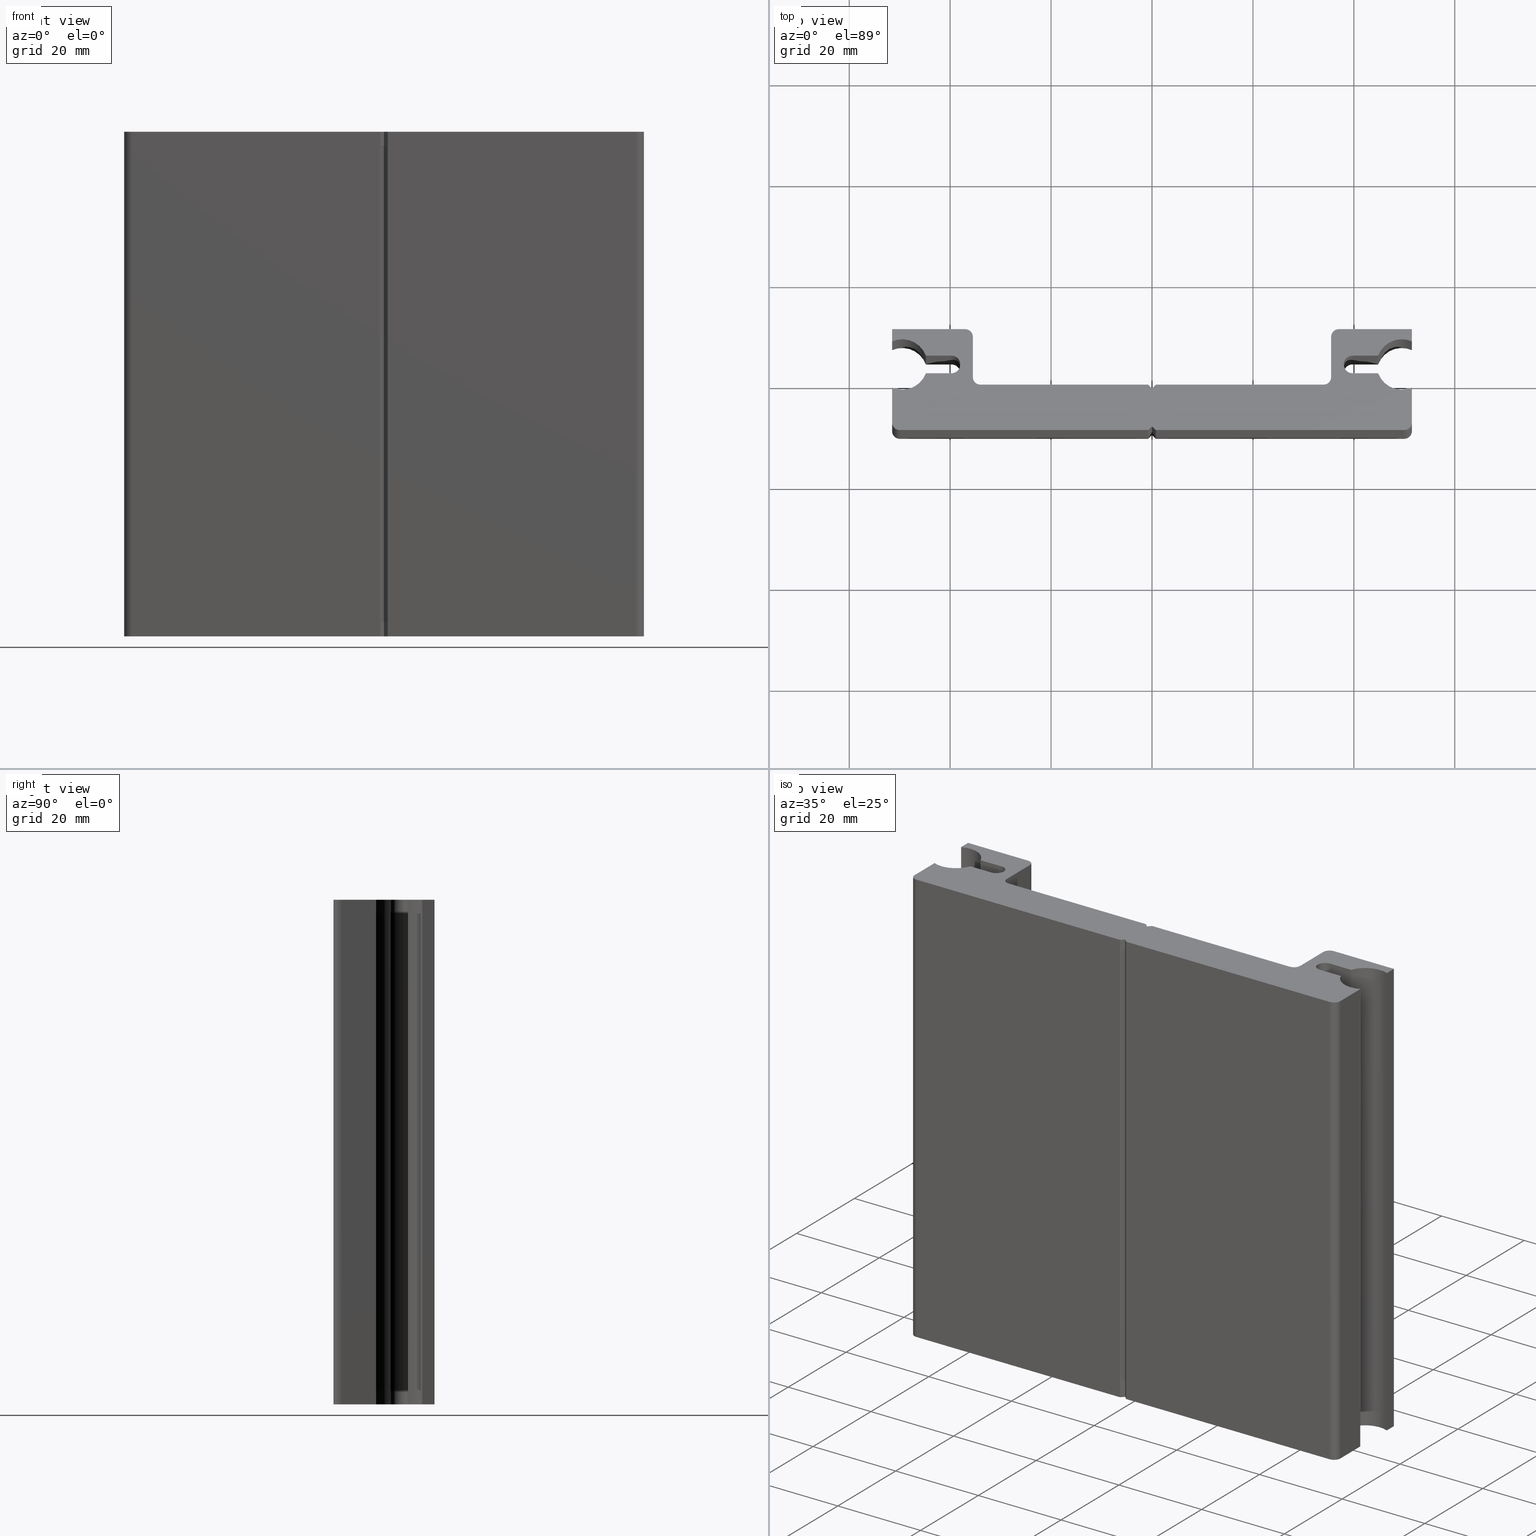
[diagram: canonical four-view strip — front | top / right | iso, engineering-drawing reading convention]
A machine part, canonical four-view strip (front | top / right | iso — engineering-drawing reading convention). The complete STEP part file that produces these views, byte-faithful:
ISO-10303-21;
HEADER;
/* Generated by software containing ST-Developer
 * from STEP Tools, Inc. (www.steptools.com) 
 */

FILE_DESCRIPTION(
/* description */ ('PROFILO GUIDA LINEARE GDX10'),
/* implementation_level */ '2;1');

FILE_NAME(
/* name */ 'C:\\Users\\tecnico7\\Desktop\\F3DTM0000606.stp',
/* time_stamp */ '2022-07-20T15:50:26+02:00',
/* author */ ('tecnico7'),
/* organization */ (''),
/* preprocessor_version */ 'ST-DEVELOPER v18.1',
/* originating_system */ 'Autodesk Inventor 2022',
/* authorisation */ '');

FILE_SCHEMA (('AUTOMOTIVE_DESIGN { 1 0 10303 214 3 1 1 }'));
ENDSEC;

DATA;
#10=MECHANICAL_DESIGN_GEOMETRIC_PRESENTATION_REPRESENTATION('',(#17),#1160);
#11=ITEM_DEFINED_TRANSFORMATION($,$,#704,#763);
#12=(
REPRESENTATION_RELATIONSHIP($,$,#1171,#1170)
REPRESENTATION_RELATIONSHIP_WITH_TRANSFORMATION(#11)
SHAPE_REPRESENTATION_RELATIONSHIP()
);
#13=CONTEXT_DEPENDENT_SHAPE_REPRESENTATION(#12,#1169);
#14=NEXT_ASSEMBLY_USAGE_OCCURRENCE('3DSD000934:1','3DSD000934:1',
'3DSD000934:1',#1173,#1174,'3DSD000934:1');
#15=SHAPE_REPRESENTATION_RELATIONSHIP('SRR','None',#1171,#16);
#16=ADVANCED_BREP_SHAPE_REPRESENTATION('',(#18),#1159);
#17=STYLED_ITEM('',(#1185),#18);
#18=MANIFOLD_SOLID_BREP('Solido1',#675);
#19=CIRCLE('',#708,1.75);
#20=CIRCLE('',#709,1.75);
#21=CIRCLE('',#713,1.75);
#22=CIRCLE('',#714,1.75);
#23=CIRCLE('',#716,5.);
#24=CIRCLE('',#717,5.);
#25=CIRCLE('',#719,5.);
#26=CIRCLE('',#720,5.);
#27=CIRCLE('',#722,5.);
#28=CIRCLE('',#723,5.);
#29=CIRCLE('',#725,5.);
#30=CIRCLE('',#726,5.);
#31=CIRCLE('',#728,1.5);
#32=CIRCLE('',#729,1.5);
#33=CIRCLE('',#730,1.5);
#34=CIRCLE('',#731,1.5);
#35=CIRCLE('',#732,1.5);
#36=CIRCLE('',#733,1.5);
#37=CIRCLE('',#735,1.5);
#38=CIRCLE('',#738,1.5);
#39=CIRCLE('',#739,1.5);
#40=CIRCLE('',#740,1.5);
#41=CIRCLE('',#741,1.5);
#42=CIRCLE('',#742,1.5);
#43=CYLINDRICAL_SURFACE('',#707,1.75);
#44=CYLINDRICAL_SURFACE('',#712,1.75);
#45=CYLINDRICAL_SURFACE('',#715,5.);
#46=CYLINDRICAL_SURFACE('',#718,5.);
#47=CYLINDRICAL_SURFACE('',#721,5.);
#48=CYLINDRICAL_SURFACE('',#724,5.);
#49=CYLINDRICAL_SURFACE('',#734,1.5);
#50=CYLINDRICAL_SURFACE('',#743,1.5);
#51=CYLINDRICAL_SURFACE('',#745,1.5);
#52=CYLINDRICAL_SURFACE('',#747,1.5);
#53=CYLINDRICAL_SURFACE('',#749,1.5);
#54=CYLINDRICAL_SURFACE('',#750,1.5);
#55=FACE_OUTER_BOUND('',#89,.T.);
#56=FACE_OUTER_BOUND('',#90,.T.);
#57=FACE_OUTER_BOUND('',#91,.T.);
#58=FACE_OUTER_BOUND('',#92,.T.);
#59=FACE_OUTER_BOUND('',#93,.T.);
#60=FACE_OUTER_BOUND('',#94,.T.);
#61=FACE_OUTER_BOUND('',#95,.T.);
#62=FACE_OUTER_BOUND('',#96,.T.);
#63=FACE_OUTER_BOUND('',#97,.T.);
#64=FACE_OUTER_BOUND('',#98,.T.);
#65=FACE_OUTER_BOUND('',#99,.T.);
#66=FACE_OUTER_BOUND('',#100,.T.);
#67=FACE_OUTER_BOUND('',#101,.T.);
#68=FACE_OUTER_BOUND('',#102,.T.);
#69=FACE_OUTER_BOUND('',#103,.T.);
#70=FACE_OUTER_BOUND('',#104,.T.);
#71=FACE_OUTER_BOUND('',#105,.T.);
#72=FACE_OUTER_BOUND('',#106,.T.);
#73=FACE_OUTER_BOUND('',#107,.T.);
#74=FACE_OUTER_BOUND('',#108,.T.);
#75=FACE_OUTER_BOUND('',#109,.T.);
#76=FACE_OUTER_BOUND('',#110,.T.);
#77=FACE_OUTER_BOUND('',#111,.T.);
#78=FACE_OUTER_BOUND('',#112,.T.);
#79=FACE_OUTER_BOUND('',#113,.T.);
#80=FACE_OUTER_BOUND('',#114,.T.);
#81=FACE_OUTER_BOUND('',#115,.T.);
#82=FACE_OUTER_BOUND('',#116,.T.);
#83=FACE_OUTER_BOUND('',#117,.T.);
#84=FACE_OUTER_BOUND('',#118,.T.);
#85=FACE_OUTER_BOUND('',#119,.T.);
#86=FACE_OUTER_BOUND('',#120,.T.);
#87=FACE_OUTER_BOUND('',#121,.T.);
#88=FACE_OUTER_BOUND('',#122,.T.);
#89=EDGE_LOOP('',(#427,#428,#429,#430));
#90=EDGE_LOOP('',(#431,#432,#433,#434));
#91=EDGE_LOOP('',(#435,#436,#437,#438));
#92=EDGE_LOOP('',(#439,#440,#441,#442));
#93=EDGE_LOOP('',(#443,#444,#445,#446));
#94=EDGE_LOOP('',(#447,#448,#449,#450));
#95=EDGE_LOOP('',(#451,#452,#453,#454));
#96=EDGE_LOOP('',(#455,#456,#457,#458));
#97=EDGE_LOOP('',(#459,#460,#461,#462));
#98=EDGE_LOOP('',(#463,#464,#465,#466));
#99=EDGE_LOOP('',(#467,#468,#469,#470,#471,#472,#473,#474,#475,#476,#477,
#478,#479,#480,#481,#482,#483,#484,#485,#486,#487,#488,#489,#490,#491,#492,
#493,#494,#495,#496,#497,#498));
#100=EDGE_LOOP('',(#499,#500,#501,#502));
#101=EDGE_LOOP('',(#503,#504,#505,#506));
#102=EDGE_LOOP('',(#507,#508,#509,#510,#511,#512,#513,#514,#515,#516,#517,
#518,#519,#520,#521,#522,#523,#524,#525,#526,#527,#528,#529,#530,#531,#532,
#533,#534,#535,#536,#537,#538));
#103=EDGE_LOOP('',(#539,#540,#541,#542));
#104=EDGE_LOOP('',(#543,#544,#545,#546));
#105=EDGE_LOOP('',(#547,#548,#549,#550));
#106=EDGE_LOOP('',(#551,#552,#553,#554));
#107=EDGE_LOOP('',(#555,#556,#557,#558));
#108=EDGE_LOOP('',(#559,#560,#561,#562));
#109=EDGE_LOOP('',(#563,#564,#565,#566));
#110=EDGE_LOOP('',(#567,#568,#569,#570));
#111=EDGE_LOOP('',(#571,#572,#573,#574));
#112=EDGE_LOOP('',(#575,#576,#577,#578));
#113=EDGE_LOOP('',(#579,#580,#581,#582));
#114=EDGE_LOOP('',(#583,#584,#585,#586));
#115=EDGE_LOOP('',(#587,#588,#589,#590));
#116=EDGE_LOOP('',(#591,#592,#593,#594));
#117=EDGE_LOOP('',(#595,#596,#597,#598));
#118=EDGE_LOOP('',(#599,#600,#601,#602));
#119=EDGE_LOOP('',(#603,#604,#605,#606));
#120=EDGE_LOOP('',(#607,#608,#609,#610));
#121=EDGE_LOOP('',(#611,#612,#613,#614));
#122=EDGE_LOOP('',(#615,#616,#617,#618));
#123=LINE('',#963,#195);
#124=LINE('',#965,#196);
#125=LINE('',#967,#197);
#126=LINE('',#968,#198);
#127=LINE('',#972,#199);
#128=LINE('',#974,#200);
#129=LINE('',#976,#201);
#130=LINE('',#977,#202);
#131=LINE('',#984,#203);
#132=LINE('',#986,#204);
#133=LINE('',#988,#205);
#134=LINE('',#989,#206);
#135=LINE('',#993,#207);
#136=LINE('',#995,#208);
#137=LINE('',#997,#209);
#138=LINE('',#998,#210);
#139=LINE('',#1006,#211);
#140=LINE('',#1012,#212);
#141=LINE('',#1018,#213);
#142=LINE('',#1024,#214);
#143=LINE('',#1028,#215);
#144=LINE('',#1030,#216);
#145=LINE('',#1034,#217);
#146=LINE('',#1038,#218);
#147=LINE('',#1040,#219);
#148=LINE('',#1042,#220);
#149=LINE('',#1044,#221);
#150=LINE('',#1048,#222);
#151=LINE('',#1052,#223);
#152=LINE('',#1053,#224);
#153=LINE('',#1055,#225);
#154=LINE('',#1059,#226);
#155=LINE('',#1061,#227);
#156=LINE('',#1063,#228);
#157=LINE('',#1065,#229);
#158=LINE('',#1068,#230);
#159=LINE('',#1071,#231);
#160=LINE('',#1074,#232);
#161=LINE('',#1077,#233);
#162=LINE('',#1078,#234);
#163=LINE('',#1081,#235);
#164=LINE('',#1085,#236);
#165=LINE('',#1087,#237);
#166=LINE('',#1089,#238);
#167=LINE('',#1091,#239);
#168=LINE('',#1094,#240);
#169=LINE('',#1096,#241);
#170=LINE('',#1098,#242);
#171=LINE('',#1102,#243);
#172=LINE('',#1106,#244);
#173=LINE('',#1108,#245);
#174=LINE('',#1110,#246);
#175=LINE('',#1112,#247);
#176=LINE('',#1115,#248);
#177=LINE('',#1116,#249);
#178=LINE('',#1118,#250);
#179=LINE('',#1119,#251);
#180=LINE('',#1121,#252);
#181=LINE('',#1123,#253);
#182=LINE('',#1124,#254);
#183=LINE('',#1127,#255);
#184=LINE('',#1128,#256);
#185=LINE('',#1130,#257);
#186=LINE('',#1132,#258);
#187=LINE('',#1134,#259);
#188=LINE('',#1136,#260);
#189=LINE('',#1138,#261);
#190=LINE('',#1140,#262);
#191=LINE('',#1142,#263);
#192=LINE('',#1143,#264);
#193=LINE('',#1149,#265);
#194=LINE('',#1152,#266);
#195=VECTOR('',#770,10.);
#196=VECTOR('',#771,10.);
#197=VECTOR('',#772,10.);
#198=VECTOR('',#773,10.);
#199=VECTOR('',#776,10.);
#200=VECTOR('',#777,10.);
#201=VECTOR('',#778,10.);
#202=VECTOR('',#779,10.);
#203=VECTOR('',#788,10.);
#204=VECTOR('',#789,10.);
#205=VECTOR('',#790,10.);
#206=VECTOR('',#791,10.);
#207=VECTOR('',#794,10.);
#208=VECTOR('',#795,10.);
#209=VECTOR('',#796,10.);
#210=VECTOR('',#797,10.);
#211=VECTOR('',#808,10.);
#212=VECTOR('',#815,10.);
#213=VECTOR('',#822,10.);
#214=VECTOR('',#829,10.);
#215=VECTOR('',#834,10.);
#216=VECTOR('',#835,10.);
#217=VECTOR('',#838,10.);
#218=VECTOR('',#841,10.);
#219=VECTOR('',#842,10.);
#220=VECTOR('',#843,10.);
#221=VECTOR('',#844,10.);
#222=VECTOR('',#847,10.);
#223=VECTOR('',#850,10.);
#224=VECTOR('',#851,10.);
#225=VECTOR('',#852,10.);
#226=VECTOR('',#855,10.);
#227=VECTOR('',#856,10.);
#228=VECTOR('',#857,10.);
#229=VECTOR('',#858,10.);
#230=VECTOR('',#861,10.);
#231=VECTOR('',#864,10.);
#232=VECTOR('',#867,10.);
#233=VECTOR('',#870,10.);
#234=VECTOR('',#871,10.);
#235=VECTOR('',#874,10.);
#236=VECTOR('',#877,10.);
#237=VECTOR('',#878,10.);
#238=VECTOR('',#879,10.);
#239=VECTOR('',#880,10.);
#240=VECTOR('',#883,10.);
#241=VECTOR('',#884,10.);
#242=VECTOR('',#885,10.);
#243=VECTOR('',#888,10.);
#244=VECTOR('',#891,10.);
#245=VECTOR('',#892,10.);
#246=VECTOR('',#893,10.);
#247=VECTOR('',#894,10.);
#248=VECTOR('',#897,10.);
#249=VECTOR('',#898,10.);
#250=VECTOR('',#901,10.);
#251=VECTOR('',#902,10.);
#252=VECTOR('',#905,10.);
#253=VECTOR('',#908,10.);
#254=VECTOR('',#909,10.);
#255=VECTOR('',#914,10.);
#256=VECTOR('',#915,10.);
#257=VECTOR('',#918,10.);
#258=VECTOR('',#921,10.);
#259=VECTOR('',#924,10.);
#260=VECTOR('',#927,10.);
#261=VECTOR('',#930,10.);
#262=VECTOR('',#933,10.);
#263=VECTOR('',#936,10.);
#264=VECTOR('',#937,10.);
#265=VECTOR('',#948,10.);
#266=VECTOR('',#953,10.);
#267=VERTEX_POINT('',#961);
#268=VERTEX_POINT('',#962);
#269=VERTEX_POINT('',#964);
#270=VERTEX_POINT('',#966);
#271=VERTEX_POINT('',#970);
#272=VERTEX_POINT('',#971);
#273=VERTEX_POINT('',#973);
#274=VERTEX_POINT('',#975);
#275=VERTEX_POINT('',#982);
#276=VERTEX_POINT('',#983);
#277=VERTEX_POINT('',#985);
#278=VERTEX_POINT('',#987);
#279=VERTEX_POINT('',#991);
#280=VERTEX_POINT('',#992);
#281=VERTEX_POINT('',#994);
#282=VERTEX_POINT('',#996);
#283=VERTEX_POINT('',#1003);
#284=VERTEX_POINT('',#1005);
#285=VERTEX_POINT('',#1009);
#286=VERTEX_POINT('',#1011);
#287=VERTEX_POINT('',#1015);
#288=VERTEX_POINT('',#1017);
#289=VERTEX_POINT('',#1021);
#290=VERTEX_POINT('',#1023);
#291=VERTEX_POINT('',#1027);
#292=VERTEX_POINT('',#1029);
#293=VERTEX_POINT('',#1031);
#294=VERTEX_POINT('',#1033);
#295=VERTEX_POINT('',#1035);
#296=VERTEX_POINT('',#1037);
#297=VERTEX_POINT('',#1039);
#298=VERTEX_POINT('',#1041);
#299=VERTEX_POINT('',#1043);
#300=VERTEX_POINT('',#1045);
#301=VERTEX_POINT('',#1047);
#302=VERTEX_POINT('',#1049);
#303=VERTEX_POINT('',#1051);
#304=VERTEX_POINT('',#1054);
#305=VERTEX_POINT('',#1056);
#306=VERTEX_POINT('',#1058);
#307=VERTEX_POINT('',#1060);
#308=VERTEX_POINT('',#1062);
#309=VERTEX_POINT('',#1064);
#310=VERTEX_POINT('',#1066);
#311=VERTEX_POINT('',#1070);
#312=VERTEX_POINT('',#1072);
#313=VERTEX_POINT('',#1076);
#314=VERTEX_POINT('',#1080);
#315=VERTEX_POINT('',#1082);
#316=VERTEX_POINT('',#1084);
#317=VERTEX_POINT('',#1086);
#318=VERTEX_POINT('',#1088);
#319=VERTEX_POINT('',#1090);
#320=VERTEX_POINT('',#1092);
#321=VERTEX_POINT('',#1095);
#322=VERTEX_POINT('',#1097);
#323=VERTEX_POINT('',#1099);
#324=VERTEX_POINT('',#1101);
#325=VERTEX_POINT('',#1103);
#326=VERTEX_POINT('',#1105);
#327=VERTEX_POINT('',#1107);
#328=VERTEX_POINT('',#1109);
#329=VERTEX_POINT('',#1111);
#330=VERTEX_POINT('',#1114);
#331=EDGE_CURVE('',#267,#268,#123,.T.);
#332=EDGE_CURVE('',#269,#267,#124,.T.);
#333=EDGE_CURVE('',#270,#269,#125,.T.);
#334=EDGE_CURVE('',#268,#270,#126,.T.);
#335=EDGE_CURVE('',#271,#272,#127,.T.);
#336=EDGE_CURVE('',#273,#271,#128,.T.);
#337=EDGE_CURVE('',#274,#273,#129,.T.);
#338=EDGE_CURVE('',#274,#272,#130,.T.);
#339=EDGE_CURVE('',#272,#267,#19,.T.);
#340=EDGE_CURVE('',#269,#274,#20,.T.);
#341=EDGE_CURVE('',#275,#276,#131,.T.);
#342=EDGE_CURVE('',#277,#275,#132,.T.);
#343=EDGE_CURVE('',#278,#277,#133,.T.);
#344=EDGE_CURVE('',#276,#278,#134,.T.);
#345=EDGE_CURVE('',#279,#280,#135,.T.);
#346=EDGE_CURVE('',#281,#279,#136,.T.);
#347=EDGE_CURVE('',#282,#281,#137,.T.);
#348=EDGE_CURVE('',#282,#280,#138,.T.);
#349=EDGE_CURVE('',#280,#275,#21,.T.);
#350=EDGE_CURVE('',#277,#282,#22,.T.);
#351=EDGE_CURVE('',#283,#270,#23,.T.);
#352=EDGE_CURVE('',#284,#283,#139,.T.);
#353=EDGE_CURVE('',#268,#284,#24,.T.);
#354=EDGE_CURVE('',#285,#271,#25,.T.);
#355=EDGE_CURVE('',#286,#285,#140,.T.);
#356=EDGE_CURVE('',#273,#286,#26,.T.);
#357=EDGE_CURVE('',#287,#278,#27,.T.);
#358=EDGE_CURVE('',#288,#287,#141,.T.);
#359=EDGE_CURVE('',#276,#288,#28,.T.);
#360=EDGE_CURVE('',#289,#279,#29,.T.);
#361=EDGE_CURVE('',#290,#289,#142,.T.);
#362=EDGE_CURVE('',#281,#290,#30,.T.);
#363=EDGE_CURVE('',#284,#291,#143,.T.);
#364=EDGE_CURVE('',#291,#292,#144,.T.);
#365=EDGE_CURVE('',#293,#292,#31,.T.);
#366=EDGE_CURVE('',#293,#294,#145,.T.);
#367=EDGE_CURVE('',#295,#294,#32,.T.);
#368=EDGE_CURVE('',#295,#296,#146,.T.);
#369=EDGE_CURVE('',#296,#297,#147,.T.);
#370=EDGE_CURVE('',#297,#298,#148,.T.);
#371=EDGE_CURVE('',#298,#299,#149,.T.);
#372=EDGE_CURVE('',#300,#299,#33,.T.);
#373=EDGE_CURVE('',#300,#301,#150,.T.);
#374=EDGE_CURVE('',#302,#301,#34,.T.);
#375=EDGE_CURVE('',#302,#303,#151,.T.);
#376=EDGE_CURVE('',#303,#289,#152,.T.);
#377=EDGE_CURVE('',#288,#304,#153,.T.);
#378=EDGE_CURVE('',#305,#304,#35,.T.);
#379=EDGE_CURVE('',#305,#306,#154,.T.);
#380=EDGE_CURVE('',#306,#307,#155,.T.);
#381=EDGE_CURVE('',#307,#308,#156,.T.);
#382=EDGE_CURVE('',#308,#309,#157,.T.);
#383=EDGE_CURVE('',#310,#309,#36,.T.);
#384=EDGE_CURVE('',#310,#285,#158,.T.);
#385=EDGE_CURVE('',#292,#311,#159,.T.);
#386=EDGE_CURVE('',#311,#312,#37,.T.);
#387=EDGE_CURVE('',#312,#293,#160,.T.);
#388=EDGE_CURVE('',#313,#312,#161,.T.);
#389=EDGE_CURVE('',#294,#313,#162,.T.);
#390=EDGE_CURVE('',#286,#314,#163,.T.);
#391=EDGE_CURVE('',#315,#314,#38,.T.);
#392=EDGE_CURVE('',#315,#316,#164,.T.);
#393=EDGE_CURVE('',#316,#317,#165,.T.);
#394=EDGE_CURVE('',#317,#318,#166,.T.);
#395=EDGE_CURVE('',#318,#319,#167,.T.);
#396=EDGE_CURVE('',#320,#319,#39,.T.);
#397=EDGE_CURVE('',#320,#287,#168,.T.);
#398=EDGE_CURVE('',#290,#321,#169,.T.);
#399=EDGE_CURVE('',#321,#322,#170,.T.);
#400=EDGE_CURVE('',#323,#322,#40,.T.);
#401=EDGE_CURVE('',#323,#324,#171,.T.);
#402=EDGE_CURVE('',#325,#324,#41,.T.);
#403=EDGE_CURVE('',#325,#326,#172,.T.);
#404=EDGE_CURVE('',#326,#327,#173,.T.);
#405=EDGE_CURVE('',#327,#328,#174,.T.);
#406=EDGE_CURVE('',#328,#329,#175,.T.);
#407=EDGE_CURVE('',#313,#329,#42,.T.);
#408=EDGE_CURVE('',#311,#330,#176,.T.);
#409=EDGE_CURVE('',#330,#283,#177,.T.);
#410=EDGE_CURVE('',#322,#302,#178,.T.);
#411=EDGE_CURVE('',#301,#323,#179,.T.);
#412=EDGE_CURVE('',#324,#300,#180,.T.);
#413=EDGE_CURVE('',#319,#305,#181,.T.);
#414=EDGE_CURVE('',#304,#320,#182,.T.);
#415=EDGE_CURVE('',#314,#310,#183,.T.);
#416=EDGE_CURVE('',#309,#315,#184,.T.);
#417=EDGE_CURVE('',#308,#316,#185,.T.);
#418=EDGE_CURVE('',#299,#325,#186,.T.);
#419=EDGE_CURVE('',#329,#295,#187,.T.);
#420=EDGE_CURVE('',#328,#296,#188,.T.);
#421=EDGE_CURVE('',#327,#297,#189,.T.);
#422=EDGE_CURVE('',#298,#326,#190,.T.);
#423=EDGE_CURVE('',#318,#306,#191,.T.);
#424=EDGE_CURVE('',#317,#307,#192,.T.);
#425=EDGE_CURVE('',#303,#321,#193,.T.);
#426=EDGE_CURVE('',#291,#330,#194,.T.);
#427=ORIENTED_EDGE('',*,*,#331,.F.);
#428=ORIENTED_EDGE('',*,*,#332,.F.);
#429=ORIENTED_EDGE('',*,*,#333,.F.);
#430=ORIENTED_EDGE('',*,*,#334,.F.);
#431=ORIENTED_EDGE('',*,*,#335,.F.);
#432=ORIENTED_EDGE('',*,*,#336,.F.);
#433=ORIENTED_EDGE('',*,*,#337,.F.);
#434=ORIENTED_EDGE('',*,*,#338,.T.);
#435=ORIENTED_EDGE('',*,*,#339,.F.);
#436=ORIENTED_EDGE('',*,*,#338,.F.);
#437=ORIENTED_EDGE('',*,*,#340,.F.);
#438=ORIENTED_EDGE('',*,*,#332,.T.);
#439=ORIENTED_EDGE('',*,*,#341,.F.);
#440=ORIENTED_EDGE('',*,*,#342,.F.);
#441=ORIENTED_EDGE('',*,*,#343,.F.);
#442=ORIENTED_EDGE('',*,*,#344,.F.);
#443=ORIENTED_EDGE('',*,*,#345,.F.);
#444=ORIENTED_EDGE('',*,*,#346,.F.);
#445=ORIENTED_EDGE('',*,*,#347,.F.);
#446=ORIENTED_EDGE('',*,*,#348,.T.);
#447=ORIENTED_EDGE('',*,*,#349,.F.);
#448=ORIENTED_EDGE('',*,*,#348,.F.);
#449=ORIENTED_EDGE('',*,*,#350,.F.);
#450=ORIENTED_EDGE('',*,*,#342,.T.);
#451=ORIENTED_EDGE('',*,*,#334,.T.);
#452=ORIENTED_EDGE('',*,*,#351,.F.);
#453=ORIENTED_EDGE('',*,*,#352,.F.);
#454=ORIENTED_EDGE('',*,*,#353,.F.);
#455=ORIENTED_EDGE('',*,*,#336,.T.);
#456=ORIENTED_EDGE('',*,*,#354,.F.);
#457=ORIENTED_EDGE('',*,*,#355,.F.);
#458=ORIENTED_EDGE('',*,*,#356,.F.);
#459=ORIENTED_EDGE('',*,*,#344,.T.);
#460=ORIENTED_EDGE('',*,*,#357,.F.);
#461=ORIENTED_EDGE('',*,*,#358,.F.);
#462=ORIENTED_EDGE('',*,*,#359,.F.);
#463=ORIENTED_EDGE('',*,*,#346,.T.);
#464=ORIENTED_EDGE('',*,*,#360,.F.);
#465=ORIENTED_EDGE('',*,*,#361,.F.);
#466=ORIENTED_EDGE('',*,*,#362,.F.);
#467=ORIENTED_EDGE('',*,*,#335,.T.);
#468=ORIENTED_EDGE('',*,*,#339,.T.);
#469=ORIENTED_EDGE('',*,*,#331,.T.);
#470=ORIENTED_EDGE('',*,*,#353,.T.);
#471=ORIENTED_EDGE('',*,*,#363,.T.);
#472=ORIENTED_EDGE('',*,*,#364,.T.);
#473=ORIENTED_EDGE('',*,*,#365,.F.);
#474=ORIENTED_EDGE('',*,*,#366,.T.);
#475=ORIENTED_EDGE('',*,*,#367,.F.);
#476=ORIENTED_EDGE('',*,*,#368,.T.);
#477=ORIENTED_EDGE('',*,*,#369,.T.);
#478=ORIENTED_EDGE('',*,*,#370,.T.);
#479=ORIENTED_EDGE('',*,*,#371,.T.);
#480=ORIENTED_EDGE('',*,*,#372,.F.);
#481=ORIENTED_EDGE('',*,*,#373,.T.);
#482=ORIENTED_EDGE('',*,*,#374,.F.);
#483=ORIENTED_EDGE('',*,*,#375,.T.);
#484=ORIENTED_EDGE('',*,*,#376,.T.);
#485=ORIENTED_EDGE('',*,*,#360,.T.);
#486=ORIENTED_EDGE('',*,*,#345,.T.);
#487=ORIENTED_EDGE('',*,*,#349,.T.);
#488=ORIENTED_EDGE('',*,*,#341,.T.);
#489=ORIENTED_EDGE('',*,*,#359,.T.);
#490=ORIENTED_EDGE('',*,*,#377,.T.);
#491=ORIENTED_EDGE('',*,*,#378,.F.);
#492=ORIENTED_EDGE('',*,*,#379,.T.);
#493=ORIENTED_EDGE('',*,*,#380,.T.);
#494=ORIENTED_EDGE('',*,*,#381,.T.);
#495=ORIENTED_EDGE('',*,*,#382,.T.);
#496=ORIENTED_EDGE('',*,*,#383,.F.);
#497=ORIENTED_EDGE('',*,*,#384,.T.);
#498=ORIENTED_EDGE('',*,*,#354,.T.);
#499=ORIENTED_EDGE('',*,*,#365,.T.);
#500=ORIENTED_EDGE('',*,*,#385,.T.);
#501=ORIENTED_EDGE('',*,*,#386,.T.);
#502=ORIENTED_EDGE('',*,*,#387,.T.);
#503=ORIENTED_EDGE('',*,*,#387,.F.);
#504=ORIENTED_EDGE('',*,*,#388,.F.);
#505=ORIENTED_EDGE('',*,*,#389,.F.);
#506=ORIENTED_EDGE('',*,*,#366,.F.);
#507=ORIENTED_EDGE('',*,*,#337,.T.);
#508=ORIENTED_EDGE('',*,*,#356,.T.);
#509=ORIENTED_EDGE('',*,*,#390,.T.);
#510=ORIENTED_EDGE('',*,*,#391,.F.);
#511=ORIENTED_EDGE('',*,*,#392,.T.);
#512=ORIENTED_EDGE('',*,*,#393,.T.);
#513=ORIENTED_EDGE('',*,*,#394,.T.);
#514=ORIENTED_EDGE('',*,*,#395,.T.);
#515=ORIENTED_EDGE('',*,*,#396,.F.);
#516=ORIENTED_EDGE('',*,*,#397,.T.);
#517=ORIENTED_EDGE('',*,*,#357,.T.);
#518=ORIENTED_EDGE('',*,*,#343,.T.);
#519=ORIENTED_EDGE('',*,*,#350,.T.);
#520=ORIENTED_EDGE('',*,*,#347,.T.);
#521=ORIENTED_EDGE('',*,*,#362,.T.);
#522=ORIENTED_EDGE('',*,*,#398,.T.);
#523=ORIENTED_EDGE('',*,*,#399,.T.);
#524=ORIENTED_EDGE('',*,*,#400,.F.);
#525=ORIENTED_EDGE('',*,*,#401,.T.);
#526=ORIENTED_EDGE('',*,*,#402,.F.);
#527=ORIENTED_EDGE('',*,*,#403,.T.);
#528=ORIENTED_EDGE('',*,*,#404,.T.);
#529=ORIENTED_EDGE('',*,*,#405,.T.);
#530=ORIENTED_EDGE('',*,*,#406,.T.);
#531=ORIENTED_EDGE('',*,*,#407,.F.);
#532=ORIENTED_EDGE('',*,*,#388,.T.);
#533=ORIENTED_EDGE('',*,*,#386,.F.);
#534=ORIENTED_EDGE('',*,*,#408,.T.);
#535=ORIENTED_EDGE('',*,*,#409,.T.);
#536=ORIENTED_EDGE('',*,*,#351,.T.);
#537=ORIENTED_EDGE('',*,*,#333,.T.);
#538=ORIENTED_EDGE('',*,*,#340,.T.);
#539=ORIENTED_EDGE('',*,*,#400,.T.);
#540=ORIENTED_EDGE('',*,*,#410,.T.);
#541=ORIENTED_EDGE('',*,*,#374,.T.);
#542=ORIENTED_EDGE('',*,*,#411,.T.);
#543=ORIENTED_EDGE('',*,*,#411,.F.);
#544=ORIENTED_EDGE('',*,*,#373,.F.);
#545=ORIENTED_EDGE('',*,*,#412,.F.);
#546=ORIENTED_EDGE('',*,*,#401,.F.);
#547=ORIENTED_EDGE('',*,*,#396,.T.);
#548=ORIENTED_EDGE('',*,*,#413,.T.);
#549=ORIENTED_EDGE('',*,*,#378,.T.);
#550=ORIENTED_EDGE('',*,*,#414,.T.);
#551=ORIENTED_EDGE('',*,*,#414,.F.);
#552=ORIENTED_EDGE('',*,*,#377,.F.);
#553=ORIENTED_EDGE('',*,*,#358,.T.);
#554=ORIENTED_EDGE('',*,*,#397,.F.);
#555=ORIENTED_EDGE('',*,*,#391,.T.);
#556=ORIENTED_EDGE('',*,*,#415,.T.);
#557=ORIENTED_EDGE('',*,*,#383,.T.);
#558=ORIENTED_EDGE('',*,*,#416,.T.);
#559=ORIENTED_EDGE('',*,*,#416,.F.);
#560=ORIENTED_EDGE('',*,*,#382,.F.);
#561=ORIENTED_EDGE('',*,*,#417,.T.);
#562=ORIENTED_EDGE('',*,*,#392,.F.);
#563=ORIENTED_EDGE('',*,*,#402,.T.);
#564=ORIENTED_EDGE('',*,*,#412,.T.);
#565=ORIENTED_EDGE('',*,*,#372,.T.);
#566=ORIENTED_EDGE('',*,*,#418,.T.);
#567=ORIENTED_EDGE('',*,*,#407,.T.);
#568=ORIENTED_EDGE('',*,*,#419,.T.);
#569=ORIENTED_EDGE('',*,*,#367,.T.);
#570=ORIENTED_EDGE('',*,*,#389,.T.);
#571=ORIENTED_EDGE('',*,*,#419,.F.);
#572=ORIENTED_EDGE('',*,*,#406,.F.);
#573=ORIENTED_EDGE('',*,*,#420,.T.);
#574=ORIENTED_EDGE('',*,*,#368,.F.);
#575=ORIENTED_EDGE('',*,*,#369,.F.);
#576=ORIENTED_EDGE('',*,*,#420,.F.);
#577=ORIENTED_EDGE('',*,*,#405,.F.);
#578=ORIENTED_EDGE('',*,*,#421,.T.);
#579=ORIENTED_EDGE('',*,*,#370,.F.);
#580=ORIENTED_EDGE('',*,*,#421,.F.);
#581=ORIENTED_EDGE('',*,*,#404,.F.);
#582=ORIENTED_EDGE('',*,*,#422,.F.);
#583=ORIENTED_EDGE('',*,*,#380,.F.);
#584=ORIENTED_EDGE('',*,*,#423,.F.);
#585=ORIENTED_EDGE('',*,*,#394,.F.);
#586=ORIENTED_EDGE('',*,*,#424,.T.);
#587=ORIENTED_EDGE('',*,*,#381,.F.);
#588=ORIENTED_EDGE('',*,*,#424,.F.);
#589=ORIENTED_EDGE('',*,*,#393,.F.);
#590=ORIENTED_EDGE('',*,*,#417,.F.);
#591=ORIENTED_EDGE('',*,*,#418,.F.);
#592=ORIENTED_EDGE('',*,*,#371,.F.);
#593=ORIENTED_EDGE('',*,*,#422,.T.);
#594=ORIENTED_EDGE('',*,*,#403,.F.);
#595=ORIENTED_EDGE('',*,*,#413,.F.);
#596=ORIENTED_EDGE('',*,*,#395,.F.);
#597=ORIENTED_EDGE('',*,*,#423,.T.);
#598=ORIENTED_EDGE('',*,*,#379,.F.);
#599=ORIENTED_EDGE('',*,*,#415,.F.);
#600=ORIENTED_EDGE('',*,*,#390,.F.);
#601=ORIENTED_EDGE('',*,*,#355,.T.);
#602=ORIENTED_EDGE('',*,*,#384,.F.);
#603=ORIENTED_EDGE('',*,*,#361,.T.);
#604=ORIENTED_EDGE('',*,*,#376,.F.);
#605=ORIENTED_EDGE('',*,*,#425,.T.);
#606=ORIENTED_EDGE('',*,*,#398,.F.);
#607=ORIENTED_EDGE('',*,*,#410,.F.);
#608=ORIENTED_EDGE('',*,*,#399,.F.);
#609=ORIENTED_EDGE('',*,*,#425,.F.);
#610=ORIENTED_EDGE('',*,*,#375,.F.);
#611=ORIENTED_EDGE('',*,*,#352,.T.);
#612=ORIENTED_EDGE('',*,*,#409,.F.);
#613=ORIENTED_EDGE('',*,*,#426,.F.);
#614=ORIENTED_EDGE('',*,*,#363,.F.);
#615=ORIENTED_EDGE('',*,*,#385,.F.);
#616=ORIENTED_EDGE('',*,*,#364,.F.);
#617=ORIENTED_EDGE('',*,*,#426,.T.);
#618=ORIENTED_EDGE('',*,*,#408,.F.);
#619=PLANE('',#705);
#620=PLANE('',#706);
#621=PLANE('',#710);
#622=PLANE('',#711);
#623=PLANE('',#727);
#624=PLANE('',#736);
#625=PLANE('',#737);
#626=PLANE('',#744);
#627=PLANE('',#746);
#628=PLANE('',#748);
#629=PLANE('',#751);
#630=PLANE('',#752);
#631=PLANE('',#753);
#632=PLANE('',#754);
#633=PLANE('',#755);
#634=PLANE('',#756);
#635=PLANE('',#757);
#636=PLANE('',#758);
#637=PLANE('',#759);
#638=PLANE('',#760);
#639=PLANE('',#761);
#640=PLANE('',#762);
#641=ADVANCED_FACE('',(#55),#619,.F.);
#642=ADVANCED_FACE('',(#56),#620,.F.);
#643=ADVANCED_FACE('',(#57),#43,.F.);
#644=ADVANCED_FACE('',(#58),#621,.F.);
#645=ADVANCED_FACE('',(#59),#622,.F.);
#646=ADVANCED_FACE('',(#60),#44,.F.);
#647=ADVANCED_FACE('',(#61),#45,.F.);
#648=ADVANCED_FACE('',(#62),#46,.F.);
#649=ADVANCED_FACE('',(#63),#47,.F.);
#650=ADVANCED_FACE('',(#64),#48,.F.);
#651=ADVANCED_FACE('',(#65),#623,.F.);
#652=ADVANCED_FACE('',(#66),#49,.T.);
#653=ADVANCED_FACE('',(#67),#624,.F.);
#654=ADVANCED_FACE('',(#68),#625,.T.);
#655=ADVANCED_FACE('',(#69),#50,.T.);
#656=ADVANCED_FACE('',(#70),#626,.F.);
#657=ADVANCED_FACE('',(#71),#51,.T.);
#658=ADVANCED_FACE('',(#72),#627,.T.);
#659=ADVANCED_FACE('',(#73),#52,.T.);
#660=ADVANCED_FACE('',(#74),#628,.T.);
#661=ADVANCED_FACE('',(#75),#53,.F.);
#662=ADVANCED_FACE('',(#76),#54,.F.);
#663=ADVANCED_FACE('',(#77),#629,.F.);
#664=ADVANCED_FACE('',(#78),#630,.F.);
#665=ADVANCED_FACE('',(#79),#631,.F.);
#666=ADVANCED_FACE('',(#80),#632,.F.);
#667=ADVANCED_FACE('',(#81),#633,.F.);
#668=ADVANCED_FACE('',(#82),#634,.F.);
#669=ADVANCED_FACE('',(#83),#635,.T.);
#670=ADVANCED_FACE('',(#84),#636,.T.);
#671=ADVANCED_FACE('',(#85),#637,.T.);
#672=ADVANCED_FACE('',(#86),#638,.T.);
#673=ADVANCED_FACE('',(#87),#639,.T.);
#674=ADVANCED_FACE('',(#88),#640,.T.);
#675=CLOSED_SHELL('',(#641,#642,#643,#644,#645,#646,#647,#648,#649,#650,
#651,#652,#653,#654,#655,#656,#657,#658,#659,#660,#661,#662,#663,#664,#665,
#666,#667,#668,#669,#670,#671,#672,#673,#674));
#676=DERIVED_UNIT_ELEMENT(#679,1.);
#677=DERIVED_UNIT_ELEMENT(#1162,-3.);
#678=DIMENSIONAL_EXPONENTS(1.,0.,0.,0.,0.,0.,0.);
#679=(
CONVERSION_BASED_UNIT('gram',#681)
MASS_UNIT()
NAMED_UNIT(#678)
);
#680=(
MASS_UNIT()
NAMED_UNIT(*)
SI_UNIT(.KILO.,.GRAM.)
);
#681=MASS_MEASURE_WITH_UNIT(MASS_MEASURE(0.001),#680);
#682=DERIVED_UNIT((#676,#677));
#683=MEASURE_REPRESENTATION_ITEM('density measure',
POSITIVE_RATIO_MEASURE(2.71),#682);
#684=PROPERTY_DEFINITION_REPRESENTATION(#689,#686);
#685=PROPERTY_DEFINITION_REPRESENTATION(#690,#687);
#686=REPRESENTATION('material name',(#688),#1159);
#687=REPRESENTATION('density',(#683),#1159);
#688=DESCRIPTIVE_REPRESENTATION_ITEM('Alluminio 6061','Alluminio 6061');
#689=PROPERTY_DEFINITION('material property','material name',#1174);
#690=PROPERTY_DEFINITION('material property','density of part',#1174);
#691=DATE_TIME_ROLE('creation_date');
#692=DATE_TIME_ROLE('creation_date');
#693=APPLIED_DATE_AND_TIME_ASSIGNMENT(#695,#691,(#1173));
#694=APPLIED_DATE_AND_TIME_ASSIGNMENT(#696,#692,(#1174));
#695=DATE_AND_TIME(#697,#699);
#696=DATE_AND_TIME(#698,#700);
#697=CALENDAR_DATE(2013,19,2);
#698=CALENDAR_DATE(2013,19,2);
#699=LOCAL_TIME(0,0,0.,#701);
#700=LOCAL_TIME(0,0,0.,#702);
#701=COORDINATED_UNIVERSAL_TIME_OFFSET(0,0,.BEHIND.);
#702=COORDINATED_UNIVERSAL_TIME_OFFSET(0,0,.BEHIND.);
#703=AXIS2_PLACEMENT_3D('placement',#958,#764,#765);
#704=AXIS2_PLACEMENT_3D('placement',#959,#766,#767);
#705=AXIS2_PLACEMENT_3D('',#960,#768,#769);
#706=AXIS2_PLACEMENT_3D('',#969,#774,#775);
#707=AXIS2_PLACEMENT_3D('',#978,#780,#781);
#708=AXIS2_PLACEMENT_3D('',#979,#782,#783);
#709=AXIS2_PLACEMENT_3D('',#980,#784,#785);
#710=AXIS2_PLACEMENT_3D('',#981,#786,#787);
#711=AXIS2_PLACEMENT_3D('',#990,#792,#793);
#712=AXIS2_PLACEMENT_3D('',#999,#798,#799);
#713=AXIS2_PLACEMENT_3D('',#1000,#800,#801);
#714=AXIS2_PLACEMENT_3D('',#1001,#802,#803);
#715=AXIS2_PLACEMENT_3D('',#1002,#804,#805);
#716=AXIS2_PLACEMENT_3D('',#1004,#806,#807);
#717=AXIS2_PLACEMENT_3D('',#1007,#809,#810);
#718=AXIS2_PLACEMENT_3D('',#1008,#811,#812);
#719=AXIS2_PLACEMENT_3D('',#1010,#813,#814);
#720=AXIS2_PLACEMENT_3D('',#1013,#816,#817);
#721=AXIS2_PLACEMENT_3D('',#1014,#818,#819);
#722=AXIS2_PLACEMENT_3D('',#1016,#820,#821);
#723=AXIS2_PLACEMENT_3D('',#1019,#823,#824);
#724=AXIS2_PLACEMENT_3D('',#1020,#825,#826);
#725=AXIS2_PLACEMENT_3D('',#1022,#827,#828);
#726=AXIS2_PLACEMENT_3D('',#1025,#830,#831);
#727=AXIS2_PLACEMENT_3D('',#1026,#832,#833);
#728=AXIS2_PLACEMENT_3D('',#1032,#836,#837);
#729=AXIS2_PLACEMENT_3D('',#1036,#839,#840);
#730=AXIS2_PLACEMENT_3D('',#1046,#845,#846);
#731=AXIS2_PLACEMENT_3D('',#1050,#848,#849);
#732=AXIS2_PLACEMENT_3D('',#1057,#853,#854);
#733=AXIS2_PLACEMENT_3D('',#1067,#859,#860);
#734=AXIS2_PLACEMENT_3D('',#1069,#862,#863);
#735=AXIS2_PLACEMENT_3D('',#1073,#865,#866);
#736=AXIS2_PLACEMENT_3D('',#1075,#868,#869);
#737=AXIS2_PLACEMENT_3D('',#1079,#872,#873);
#738=AXIS2_PLACEMENT_3D('',#1083,#875,#876);
#739=AXIS2_PLACEMENT_3D('',#1093,#881,#882);
#740=AXIS2_PLACEMENT_3D('',#1100,#886,#887);
#741=AXIS2_PLACEMENT_3D('',#1104,#889,#890);
#742=AXIS2_PLACEMENT_3D('',#1113,#895,#896);
#743=AXIS2_PLACEMENT_3D('',#1117,#899,#900);
#744=AXIS2_PLACEMENT_3D('',#1120,#903,#904);
#745=AXIS2_PLACEMENT_3D('',#1122,#906,#907);
#746=AXIS2_PLACEMENT_3D('',#1125,#910,#911);
#747=AXIS2_PLACEMENT_3D('',#1126,#912,#913);
#748=AXIS2_PLACEMENT_3D('',#1129,#916,#917);
#749=AXIS2_PLACEMENT_3D('',#1131,#919,#920);
#750=AXIS2_PLACEMENT_3D('',#1133,#922,#923);
#751=AXIS2_PLACEMENT_3D('',#1135,#925,#926);
#752=AXIS2_PLACEMENT_3D('',#1137,#928,#929);
#753=AXIS2_PLACEMENT_3D('',#1139,#931,#932);
#754=AXIS2_PLACEMENT_3D('',#1141,#934,#935);
#755=AXIS2_PLACEMENT_3D('',#1144,#938,#939);
#756=AXIS2_PLACEMENT_3D('',#1145,#940,#941);
#757=AXIS2_PLACEMENT_3D('',#1146,#942,#943);
#758=AXIS2_PLACEMENT_3D('',#1147,#944,#945);
#759=AXIS2_PLACEMENT_3D('',#1148,#946,#947);
#760=AXIS2_PLACEMENT_3D('',#1150,#949,#950);
#761=AXIS2_PLACEMENT_3D('',#1151,#951,#952);
#762=AXIS2_PLACEMENT_3D('',#1153,#954,#955);
#763=AXIS2_PLACEMENT_3D('',#1154,#956,#957);
#764=DIRECTION('axis',(0.,0.,1.));
#765=DIRECTION('refdir',(1.,0.,0.));
#766=DIRECTION('axis',(0.,0.,1.));
#767=DIRECTION('refdir',(1.,0.,0.));
#768=DIRECTION('center_axis',(5.47852304786845E-16,1.,0.));
#769=DIRECTION('ref_axis',(1.,-5.47852304786845E-16,0.));
#770=DIRECTION('',(-1.,5.47852304786845E-16,0.));
#771=DIRECTION('',(0.,0.,-1.));
#772=DIRECTION('',(1.,-5.47852304786845E-16,0.));
#773=DIRECTION('',(0.,0.,1.));
#774=DIRECTION('center_axis',(-5.47852304786845E-16,-1.,0.));
#775=DIRECTION('ref_axis',(-1.,5.47852304786845E-16,0.));
#776=DIRECTION('',(1.,-5.47852304786845E-16,0.));
#777=DIRECTION('',(0.,0.,-1.));
#778=DIRECTION('',(-1.,5.47852304786845E-16,0.));
#779=DIRECTION('',(0.,0.,-1.));
#780=DIRECTION('center_axis',(0.,0.,-1.));
#781=DIRECTION('ref_axis',(0.,-1.,0.));
#782=DIRECTION('center_axis',(0.,0.,1.));
#783=DIRECTION('ref_axis',(0.,-1.,0.));
#784=DIRECTION('center_axis',(0.,0.,-1.));
#785=DIRECTION('ref_axis',(0.,-1.,0.));
#786=DIRECTION('center_axis',(-5.47852304786845E-16,-1.,0.));
#787=DIRECTION('ref_axis',(-1.,5.47852304786845E-16,0.));
#788=DIRECTION('',(1.,-5.47852304786845E-16,0.));
#789=DIRECTION('',(0.,0.,-1.));
#790=DIRECTION('',(-1.,5.47852304786845E-16,0.));
#791=DIRECTION('',(0.,0.,1.));
#792=DIRECTION('center_axis',(5.47852304786845E-16,1.,0.));
#793=DIRECTION('ref_axis',(1.,-5.47852304786845E-16,0.));
#794=DIRECTION('',(-1.,5.47852304786845E-16,0.));
#795=DIRECTION('',(0.,0.,-1.));
#796=DIRECTION('',(1.,-5.47852304786845E-16,0.));
#797=DIRECTION('',(0.,0.,-1.));
#798=DIRECTION('center_axis',(0.,0.,-1.));
#799=DIRECTION('ref_axis',(0.,1.,0.));
#800=DIRECTION('center_axis',(0.,0.,1.));
#801=DIRECTION('ref_axis',(0.,1.,0.));
#802=DIRECTION('center_axis',(0.,0.,-1.));
#803=DIRECTION('ref_axis',(0.,1.,0.));
#804=DIRECTION('center_axis',(0.,0.,-1.));
#805=DIRECTION('ref_axis',(-1.,0.,0.));
#806=DIRECTION('center_axis',(0.,0.,-1.));
#807=DIRECTION('ref_axis',(-1.,0.,0.));
#808=DIRECTION('',(0.,0.,1.));
#809=DIRECTION('center_axis',(0.,0.,1.));
#810=DIRECTION('ref_axis',(-1.,0.,0.));
#811=DIRECTION('center_axis',(0.,0.,-1.));
#812=DIRECTION('ref_axis',(-1.,0.,0.));
#813=DIRECTION('center_axis',(0.,0.,1.));
#814=DIRECTION('ref_axis',(-1.,0.,0.));
#815=DIRECTION('',(0.,0.,-1.));
#816=DIRECTION('center_axis',(0.,0.,-1.));
#817=DIRECTION('ref_axis',(-1.,0.,0.));
#818=DIRECTION('center_axis',(0.,0.,-1.));
#819=DIRECTION('ref_axis',(-1.,0.,0.));
#820=DIRECTION('center_axis',(0.,0.,-1.));
#821=DIRECTION('ref_axis',(-1.,0.,0.));
#822=DIRECTION('',(0.,0.,1.));
#823=DIRECTION('center_axis',(0.,0.,1.));
#824=DIRECTION('ref_axis',(-1.,0.,0.));
#825=DIRECTION('center_axis',(0.,0.,-1.));
#826=DIRECTION('ref_axis',(-1.,0.,0.));
#827=DIRECTION('center_axis',(0.,0.,1.));
#828=DIRECTION('ref_axis',(-1.,0.,0.));
#829=DIRECTION('',(0.,0.,-1.));
#830=DIRECTION('center_axis',(0.,0.,-1.));
#831=DIRECTION('ref_axis',(-1.,0.,0.));
#832=DIRECTION('center_axis',(0.,0.,1.));
#833=DIRECTION('ref_axis',(1.,0.,0.));
#834=DIRECTION('',(0.,1.,0.));
#835=DIRECTION('',(1.,0.,0.));
#836=DIRECTION('center_axis',(0.,0.,1.));
#837=DIRECTION('ref_axis',(0.707106781186549,0.707106781186546,0.));
#838=DIRECTION('',(-4.03717463500057E-16,-1.,0.));
#839=DIRECTION('center_axis',(0.,0.,-1.));
#840=DIRECTION('ref_axis',(-0.707106781186548,-0.707106781186547,0.));
#841=DIRECTION('',(1.,1.2314093406934E-16,0.));
#842=DIRECTION('',(0.707106781186546,-0.707106781186549,0.));
#843=DIRECTION('',(0.707106781186546,0.707106781186549,0.));
#844=DIRECTION('',(1.,1.2314093406934E-16,0.));
#845=DIRECTION('center_axis',(0.,0.,-1.));
#846=DIRECTION('ref_axis',(0.707106781186548,-0.707106781186547,0.));
#847=DIRECTION('',(0.,1.,0.));
#848=DIRECTION('center_axis',(0.,0.,1.));
#849=DIRECTION('ref_axis',(-0.707106781186549,0.707106781186546,0.));
#850=DIRECTION('',(1.,0.,0.));
#851=DIRECTION('',(0.,-1.,0.));
#852=DIRECTION('',(0.,-1.,0.));
#853=DIRECTION('center_axis',(0.,0.,1.));
#854=DIRECTION('ref_axis',(0.707106781186549,-0.707106781186546,0.));
#855=DIRECTION('',(-1.,0.,0.));
#856=DIRECTION('',(-0.707106781186548,0.707106781186547,0.));
#857=DIRECTION('',(-0.707106781186547,-0.707106781186548,0.));
#858=DIRECTION('',(-1.,0.,0.));
#859=DIRECTION('center_axis',(0.,0.,1.));
#860=DIRECTION('ref_axis',(-0.707106781186549,-0.707106781186546,0.));
#861=DIRECTION('',(0.,1.,0.));
#862=DIRECTION('center_axis',(0.,0.,-1.));
#863=DIRECTION('ref_axis',(0.707106781186549,0.707106781186546,0.));
#864=DIRECTION('',(0.,0.,1.));
#865=DIRECTION('center_axis',(0.,0.,-1.));
#866=DIRECTION('ref_axis',(0.707106781186549,0.707106781186546,0.));
#867=DIRECTION('',(0.,0.,-1.));
#868=DIRECTION('center_axis',(-1.,4.03717463500057E-16,0.));
#869=DIRECTION('ref_axis',(4.03717463500057E-16,1.,0.));
#870=DIRECTION('',(4.03717463500057E-16,1.,0.));
#871=DIRECTION('',(0.,0.,1.));
#872=DIRECTION('center_axis',(0.,0.,1.));
#873=DIRECTION('ref_axis',(1.,0.,0.));
#874=DIRECTION('',(0.,-1.,0.));
#875=DIRECTION('center_axis',(0.,0.,-1.));
#876=DIRECTION('ref_axis',(-0.707106781186549,-0.707106781186546,0.));
#877=DIRECTION('',(1.,0.,0.));
#878=DIRECTION('',(0.707106781186547,0.707106781186548,0.));
#879=DIRECTION('',(0.707106781186548,-0.707106781186547,0.));
#880=DIRECTION('',(1.,0.,0.));
#881=DIRECTION('center_axis',(0.,0.,-1.));
#882=DIRECTION('ref_axis',(0.707106781186549,-0.707106781186546,0.));
#883=DIRECTION('',(0.,1.,0.));
#884=DIRECTION('',(0.,1.,0.));
#885=DIRECTION('',(-1.,0.,0.));
#886=DIRECTION('center_axis',(0.,0.,-1.));
#887=DIRECTION('ref_axis',(-0.707106781186549,0.707106781186546,0.));
#888=DIRECTION('',(0.,-1.,0.));
#889=DIRECTION('center_axis',(0.,0.,1.));
#890=DIRECTION('ref_axis',(0.707106781186548,-0.707106781186547,0.));
#891=DIRECTION('',(-1.,-1.2314093406934E-16,0.));
#892=DIRECTION('',(-0.707106781186546,-0.707106781186549,0.));
#893=DIRECTION('',(-0.707106781186546,0.707106781186549,0.));
#894=DIRECTION('',(-1.,-1.2314093406934E-16,0.));
#895=DIRECTION('center_axis',(0.,0.,1.));
#896=DIRECTION('ref_axis',(-0.707106781186548,-0.707106781186547,0.));
#897=DIRECTION('',(-1.,0.,0.));
#898=DIRECTION('',(0.,-1.,0.));
#899=DIRECTION('center_axis',(0.,0.,1.));
#900=DIRECTION('ref_axis',(-0.707106781186549,0.707106781186546,0.));
#901=DIRECTION('',(0.,0.,-1.));
#902=DIRECTION('',(0.,0.,1.));
#903=DIRECTION('center_axis',(1.,0.,0.));
#904=DIRECTION('ref_axis',(0.,-1.,0.));
#905=DIRECTION('',(0.,0.,-1.));
#906=DIRECTION('center_axis',(0.,0.,1.));
#907=DIRECTION('ref_axis',(0.707106781186549,-0.707106781186546,0.));
#908=DIRECTION('',(0.,0.,-1.));
#909=DIRECTION('',(0.,0.,1.));
#910=DIRECTION('center_axis',(1.,0.,0.));
#911=DIRECTION('ref_axis',(0.,1.,0.));
#912=DIRECTION('center_axis',(0.,0.,1.));
#913=DIRECTION('ref_axis',(-0.707106781186549,-0.707106781186546,0.));
#914=DIRECTION('',(0.,0.,-1.));
#915=DIRECTION('',(0.,0.,1.));
#916=DIRECTION('center_axis',(0.,-1.,0.));
#917=DIRECTION('ref_axis',(1.,0.,0.));
#918=DIRECTION('',(0.,0.,1.));
#919=DIRECTION('center_axis',(0.,0.,-1.));
#920=DIRECTION('ref_axis',(0.707106781186548,-0.707106781186547,0.));
#921=DIRECTION('',(0.,0.,1.));
#922=DIRECTION('center_axis',(0.,0.,-1.));
#923=DIRECTION('ref_axis',(-0.707106781186548,-0.707106781186547,0.));
#924=DIRECTION('',(0.,0.,-1.));
#925=DIRECTION('center_axis',(1.2314093406934E-16,-1.,0.));
#926=DIRECTION('ref_axis',(-1.,-1.2314093406934E-16,0.));
#927=DIRECTION('',(0.,0.,-1.));
#928=DIRECTION('center_axis',(-0.707106781186549,-0.707106781186546,0.));
#929=DIRECTION('ref_axis',(-0.707106781186546,0.707106781186549,0.));
#930=DIRECTION('',(0.,0.,-1.));
#931=DIRECTION('center_axis',(0.707106781186549,-0.707106781186546,0.));
#932=DIRECTION('ref_axis',(-0.707106781186546,-0.707106781186549,0.));
#933=DIRECTION('',(0.,0.,1.));
#934=DIRECTION('center_axis',(0.707106781186547,0.707106781186548,0.));
#935=DIRECTION('ref_axis',(0.707106781186548,-0.707106781186547,0.));
#936=DIRECTION('',(0.,0.,-1.));
#937=DIRECTION('',(0.,0.,-1.));
#938=DIRECTION('center_axis',(-0.707106781186548,0.707106781186547,0.));
#939=DIRECTION('ref_axis',(0.707106781186547,0.707106781186548,0.));
#940=DIRECTION('center_axis',(1.2314093406934E-16,-1.,0.));
#941=DIRECTION('ref_axis',(-1.,-1.2314093406934E-16,0.));
#942=DIRECTION('center_axis',(0.,-1.,0.));
#943=DIRECTION('ref_axis',(1.,0.,0.));
#944=DIRECTION('center_axis',(-1.,0.,0.));
#945=DIRECTION('ref_axis',(0.,-1.,0.));
#946=DIRECTION('center_axis',(1.,0.,0.));
#947=DIRECTION('ref_axis',(0.,1.,0.));
#948=DIRECTION('',(0.,0.,1.));
#949=DIRECTION('center_axis',(0.,1.,0.));
#950=DIRECTION('ref_axis',(-1.,0.,0.));
#951=DIRECTION('center_axis',(-1.,0.,0.));
#952=DIRECTION('ref_axis',(0.,-1.,0.));
#953=DIRECTION('',(0.,0.,1.));
#954=DIRECTION('center_axis',(0.,1.,0.));
#955=DIRECTION('ref_axis',(-1.,0.,0.));
#956=DIRECTION('',(0.,0.,1.));
#957=DIRECTION('',(1.,0.,0.));
#958=CARTESIAN_POINT('',(0.,0.,0.));
#959=CARTESIAN_POINT('',(0.,0.,0.));
#960=CARTESIAN_POINT('Origin',(-44.8162515012012,4.75,100.));
#961=CARTESIAN_POINT('',(-39.75,4.75,0.));
#962=CARTESIAN_POINT('',(-44.8162515012012,4.75,0.));
#963=CARTESIAN_POINT('',(-22.4081257506006,4.74999999999999,0.));
#964=CARTESIAN_POINT('',(-39.75,4.75,100.));
#965=CARTESIAN_POINT('',(-39.75,4.75,100.));
#966=CARTESIAN_POINT('',(-44.8162515012012,4.75,100.));
#967=CARTESIAN_POINT('',(-22.4081257506006,4.74999999999999,100.));
#968=CARTESIAN_POINT('',(-44.8162515012012,4.75,100.));
#969=CARTESIAN_POINT('Origin',(-39.75,1.25,100.));
#970=CARTESIAN_POINT('',(-44.8162515012012,1.25,0.));
#971=CARTESIAN_POINT('',(-39.75,1.25,0.));
#972=CARTESIAN_POINT('',(-19.875,1.24999999999999,0.));
#973=CARTESIAN_POINT('',(-44.8162515012012,1.25,100.));
#974=CARTESIAN_POINT('',(-44.8162515012012,1.25,100.));
#975=CARTESIAN_POINT('',(-39.75,1.25,100.));
#976=CARTESIAN_POINT('',(-19.875,1.24999999999999,100.));
#977=CARTESIAN_POINT('',(-39.75,1.25,100.));
#978=CARTESIAN_POINT('Origin',(-39.75,3.,100.));
#979=CARTESIAN_POINT('Origin',(-39.75,3.,0.));
#980=CARTESIAN_POINT('Origin',(-39.75,3.,100.));
#981=CARTESIAN_POINT('Origin',(44.8162515012012,1.25,100.));
#982=CARTESIAN_POINT('',(39.75,1.25,0.));
#983=CARTESIAN_POINT('',(44.8162515012012,1.25,0.));
#984=CARTESIAN_POINT('',(22.4081257506006,1.25000000000001,0.));
#985=CARTESIAN_POINT('',(39.75,1.25,100.));
#986=CARTESIAN_POINT('',(39.75,1.25,100.));
#987=CARTESIAN_POINT('',(44.8162515012012,1.25,100.));
#988=CARTESIAN_POINT('',(22.4081257506006,1.25000000000001,100.));
#989=CARTESIAN_POINT('',(44.8162515012012,1.25,100.));
#990=CARTESIAN_POINT('Origin',(39.75,4.75,100.));
#991=CARTESIAN_POINT('',(44.8162515012012,4.75,0.));
#992=CARTESIAN_POINT('',(39.75,4.75,0.));
#993=CARTESIAN_POINT('',(19.875,4.75000000000001,0.));
#994=CARTESIAN_POINT('',(44.8162515012012,4.75,100.));
#995=CARTESIAN_POINT('',(44.8162515012012,4.75,100.));
#996=CARTESIAN_POINT('',(39.75,4.75,100.));
#997=CARTESIAN_POINT('',(19.875,4.75000000000001,100.));
#998=CARTESIAN_POINT('',(39.75,4.75,100.));
#999=CARTESIAN_POINT('Origin',(39.75,3.,100.));
#1000=CARTESIAN_POINT('Origin',(39.75,3.,0.));
#1001=CARTESIAN_POINT('Origin',(39.75,3.,100.));
#1002=CARTESIAN_POINT('Origin',(-49.5,3.,100.));
#1003=CARTESIAN_POINT('',(-51.5,7.58257569495584,100.));
#1004=CARTESIAN_POINT('Origin',(-49.5,3.,100.));
#1005=CARTESIAN_POINT('',(-51.5,7.58257569495584,0.));
#1006=CARTESIAN_POINT('',(-51.5,7.58257569495584,100.));
#1007=CARTESIAN_POINT('Origin',(-49.5,3.,0.));
#1008=CARTESIAN_POINT('Origin',(-49.5,3.,100.));
#1009=CARTESIAN_POINT('',(-51.5,-1.58257569495584,0.));
#1010=CARTESIAN_POINT('Origin',(-49.5,3.,0.));
#1011=CARTESIAN_POINT('',(-51.5,-1.58257569495584,100.));
#1012=CARTESIAN_POINT('',(-51.5,-1.58257569495584,100.));
#1013=CARTESIAN_POINT('Origin',(-49.5,3.,100.));
#1014=CARTESIAN_POINT('Origin',(49.5,3.,100.));
#1015=CARTESIAN_POINT('',(51.5,-1.58257569495584,100.));
#1016=CARTESIAN_POINT('Origin',(49.5,3.,100.));
#1017=CARTESIAN_POINT('',(51.5,-1.58257569495584,0.));
#1018=CARTESIAN_POINT('',(51.5,-1.58257569495584,100.));
#1019=CARTESIAN_POINT('Origin',(49.5,3.,0.));
#1020=CARTESIAN_POINT('Origin',(49.5,3.,100.));
#1021=CARTESIAN_POINT('',(51.5,7.58257569495584,0.));
#1022=CARTESIAN_POINT('Origin',(49.5,3.,0.));
#1023=CARTESIAN_POINT('',(51.5,7.58257569495584,100.));
#1024=CARTESIAN_POINT('',(51.5,7.58257569495584,100.));
#1025=CARTESIAN_POINT('Origin',(49.5,3.,100.));
#1026=CARTESIAN_POINT('Origin',(0.,0.,0.));
#1027=CARTESIAN_POINT('',(-51.5,10.,0.));
#1028=CARTESIAN_POINT('',(-51.5,-10.,0.));
#1029=CARTESIAN_POINT('',(-37.,10.,0.));
#1030=CARTESIAN_POINT('',(-51.5,10.,0.));
#1031=CARTESIAN_POINT('',(-35.5,8.5,0.));
#1032=CARTESIAN_POINT('Origin',(-37.,8.5,0.));
#1033=CARTESIAN_POINT('',(-35.5,0.499999999999996,0.));
#1034=CARTESIAN_POINT('',(-35.5,-0.499999999999996,0.));
#1035=CARTESIAN_POINT('',(-34.,-1.,0.));
#1036=CARTESIAN_POINT('Origin',(-34.,0.499999999999995,0.));
#1037=CARTESIAN_POINT('',(-0.749999999999997,-1.,0.));
#1038=CARTESIAN_POINT('',(17.75,-0.999999999999998,0.));
#1039=CARTESIAN_POINT('',(-3.27927592723218E-16,-1.75,0.));
#1040=CARTESIAN_POINT('',(-0.4375,-1.3125,-8.88178419700125E-15));
#1041=CARTESIAN_POINT('',(0.749999999999997,-1.,0.));
#1042=CARTESIAN_POINT('',(0.812499999999999,-0.937499999999999,0.));
#1043=CARTESIAN_POINT('',(34.,-0.999999999999996,0.));
#1044=CARTESIAN_POINT('',(17.75,-0.999999999999998,0.));
#1045=CARTESIAN_POINT('',(35.5,0.500000000000004,0.));
#1046=CARTESIAN_POINT('Origin',(34.,0.500000000000004,0.));
#1047=CARTESIAN_POINT('',(35.5,8.5,0.));
#1048=CARTESIAN_POINT('',(35.5,5.,0.));
#1049=CARTESIAN_POINT('',(37.,10.,0.));
#1050=CARTESIAN_POINT('Origin',(37.,8.5,0.));
#1051=CARTESIAN_POINT('',(51.5,10.,0.));
#1052=CARTESIAN_POINT('',(-51.5,10.,0.));
#1053=CARTESIAN_POINT('',(51.5,10.,0.));
#1054=CARTESIAN_POINT('',(51.5,-8.5,0.));
#1055=CARTESIAN_POINT('',(51.5,10.,0.));
#1056=CARTESIAN_POINT('',(50.,-10.,0.));
#1057=CARTESIAN_POINT('Origin',(50.,-8.5,0.));
#1058=CARTESIAN_POINT('',(0.75,-10.,0.));
#1059=CARTESIAN_POINT('',(51.5,-10.,0.));
#1060=CARTESIAN_POINT('',(0.,-9.25,0.));
#1061=CARTESIAN_POINT('',(-2.3125,-6.9375,0.));
#1062=CARTESIAN_POINT('',(-0.749999999999997,-10.,0.));
#1063=CARTESIAN_POINT('',(1.9375,-7.3125,0.));
#1064=CARTESIAN_POINT('',(-50.,-10.,0.));
#1065=CARTESIAN_POINT('',(51.5,-10.,0.));
#1066=CARTESIAN_POINT('',(-51.5,-8.5,0.));
#1067=CARTESIAN_POINT('Origin',(-50.,-8.5,0.));
#1068=CARTESIAN_POINT('',(-51.5,-10.,0.));
#1069=CARTESIAN_POINT('Origin',(-37.,8.5,50.));
#1070=CARTESIAN_POINT('',(-37.,10.,100.));
#1071=CARTESIAN_POINT('',(-37.,10.,50.));
#1072=CARTESIAN_POINT('',(-35.5,8.5,100.));
#1073=CARTESIAN_POINT('Origin',(-37.,8.5,100.));
#1074=CARTESIAN_POINT('',(-35.5,8.5,50.));
#1075=CARTESIAN_POINT('Origin',(-35.5,-1.00000000000001,100.));
#1076=CARTESIAN_POINT('',(-35.5,0.499999999999996,100.));
#1077=CARTESIAN_POINT('',(-35.5,-0.499999999999996,100.));
#1078=CARTESIAN_POINT('',(-35.5,0.499999999999996,100.));
#1079=CARTESIAN_POINT('Origin',(0.,0.,100.));
#1080=CARTESIAN_POINT('',(-51.5,-8.5,100.));
#1081=CARTESIAN_POINT('',(-51.5,-10.,100.));
#1082=CARTESIAN_POINT('',(-50.,-10.,100.));
#1083=CARTESIAN_POINT('Origin',(-50.,-8.5,100.));
#1084=CARTESIAN_POINT('',(-0.749999999999997,-10.,100.));
#1085=CARTESIAN_POINT('',(51.5,-10.,100.));
#1086=CARTESIAN_POINT('',(0.,-9.25,100.));
#1087=CARTESIAN_POINT('',(1.9375,-7.3125,100.));
#1088=CARTESIAN_POINT('',(0.75,-10.,100.));
#1089=CARTESIAN_POINT('',(-2.3125,-6.9375,100.));
#1090=CARTESIAN_POINT('',(50.,-10.,100.));
#1091=CARTESIAN_POINT('',(51.5,-10.,100.));
#1092=CARTESIAN_POINT('',(51.5,-8.5,100.));
#1093=CARTESIAN_POINT('Origin',(50.,-8.5,100.));
#1094=CARTESIAN_POINT('',(51.5,10.,100.));
#1095=CARTESIAN_POINT('',(51.5,10.,100.));
#1096=CARTESIAN_POINT('',(51.5,10.,100.));
#1097=CARTESIAN_POINT('',(37.,10.,100.));
#1098=CARTESIAN_POINT('',(-51.5,10.,100.));
#1099=CARTESIAN_POINT('',(35.5,8.5,100.));
#1100=CARTESIAN_POINT('Origin',(37.,8.5,100.));
#1101=CARTESIAN_POINT('',(35.5,0.500000000000004,100.));
#1102=CARTESIAN_POINT('',(35.5,5.,100.));
#1103=CARTESIAN_POINT('',(34.,-0.999999999999996,100.));
#1104=CARTESIAN_POINT('Origin',(34.,0.500000000000004,100.));
#1105=CARTESIAN_POINT('',(0.749999999999997,-1.,100.));
#1106=CARTESIAN_POINT('',(17.75,-0.999999999999998,100.));
#1107=CARTESIAN_POINT('',(-3.27927592723218E-16,-1.75,100.));
#1108=CARTESIAN_POINT('',(0.812499999999999,-0.937499999999999,100.));
#1109=CARTESIAN_POINT('',(-0.749999999999997,-1.,100.));
#1110=CARTESIAN_POINT('',(-0.4375,-1.3125,100.));
#1111=CARTESIAN_POINT('',(-34.,-1.,100.));
#1112=CARTESIAN_POINT('',(17.75,-0.999999999999998,100.));
#1113=CARTESIAN_POINT('Origin',(-34.,0.499999999999995,100.));
#1114=CARTESIAN_POINT('',(-51.5,10.,100.));
#1115=CARTESIAN_POINT('',(-51.5,10.,100.));
#1116=CARTESIAN_POINT('',(-51.5,-10.,100.));
#1117=CARTESIAN_POINT('Origin',(37.,8.5,50.));
#1118=CARTESIAN_POINT('',(37.,10.,50.));
#1119=CARTESIAN_POINT('',(35.5,8.5,50.));
#1120=CARTESIAN_POINT('Origin',(35.5,10.,100.));
#1121=CARTESIAN_POINT('',(35.5,0.500000000000004,100.));
#1122=CARTESIAN_POINT('Origin',(50.,-8.5,0.));
#1123=CARTESIAN_POINT('',(50.,-10.,0.));
#1124=CARTESIAN_POINT('',(51.5,-8.5,0.));
#1125=CARTESIAN_POINT('Origin',(51.5,-10.,0.));
#1126=CARTESIAN_POINT('Origin',(-50.,-8.5,0.));
#1127=CARTESIAN_POINT('',(-51.5,-8.5,0.));
#1128=CARTESIAN_POINT('',(-50.,-10.,0.));
#1129=CARTESIAN_POINT('Origin',(-51.5,-10.,0.));
#1130=CARTESIAN_POINT('',(-0.750000000000002,-10.,50.));
#1131=CARTESIAN_POINT('Origin',(34.,0.500000000000004,100.));
#1132=CARTESIAN_POINT('',(34.,-0.999999999999996,100.));
#1133=CARTESIAN_POINT('Origin',(-34.,0.499999999999995,100.));
#1134=CARTESIAN_POINT('',(-34.,-1.,100.));
#1135=CARTESIAN_POINT('Origin',(35.5,-0.999999999999996,100.));
#1136=CARTESIAN_POINT('',(-0.750000000000001,-1.,100.));
#1137=CARTESIAN_POINT('Origin',(-1.38777878078145E-16,-1.75,100.));
#1138=CARTESIAN_POINT('',(-3.27927592723218E-16,-1.75,100.));
#1139=CARTESIAN_POINT('Origin',(0.749999999999997,-1.,100.));
#1140=CARTESIAN_POINT('',(0.749999999999997,-1.,100.));
#1141=CARTESIAN_POINT('Origin',(0.,-9.25,100.));
#1142=CARTESIAN_POINT('',(0.749999999999997,-10.,50.));
#1143=CARTESIAN_POINT('',(0.,-9.25,100.));
#1144=CARTESIAN_POINT('Origin',(-0.749999999999997,-10.,100.));
#1145=CARTESIAN_POINT('Origin',(35.5,-0.999999999999996,100.));
#1146=CARTESIAN_POINT('Origin',(-51.5,-10.,0.));
#1147=CARTESIAN_POINT('Origin',(-51.5,10.,0.));
#1148=CARTESIAN_POINT('Origin',(51.5,-10.,0.));
#1149=CARTESIAN_POINT('',(51.5,10.,0.));
#1150=CARTESIAN_POINT('Origin',(51.5,10.,0.));
#1151=CARTESIAN_POINT('Origin',(-51.5,10.,0.));
#1152=CARTESIAN_POINT('',(-51.5,10.,0.));
#1153=CARTESIAN_POINT('Origin',(51.5,10.,0.));
#1154=CARTESIAN_POINT('',(0.,0.,-4.44089209850063E-16));
#1155=UNCERTAINTY_MEASURE_WITH_UNIT(LENGTH_MEASURE(0.01),#1161,
'DISTANCE_ACCURACY_VALUE',
'Maximum model space distance between geometric entities at asserted c
onnectivities');
#1156=UNCERTAINTY_MEASURE_WITH_UNIT(LENGTH_MEASURE(0.01),#1161,
'DISTANCE_ACCURACY_VALUE',
'Maximum model space distance between geometric entities at asserted c
onnectivities');
#1157=UNCERTAINTY_MEASURE_WITH_UNIT(LENGTH_MEASURE(0.01),#1161,
'DISTANCE_ACCURACY_VALUE',
'Maximum model space distance between geometric entities at asserted c
onnectivities');
#1158=(
GEOMETRIC_REPRESENTATION_CONTEXT(3)
GLOBAL_UNCERTAINTY_ASSIGNED_CONTEXT((#1155))
GLOBAL_UNIT_ASSIGNED_CONTEXT((#1161,#1163,#1164))
REPRESENTATION_CONTEXT('','3D')
);
#1159=(
GEOMETRIC_REPRESENTATION_CONTEXT(3)
GLOBAL_UNCERTAINTY_ASSIGNED_CONTEXT((#1156))
GLOBAL_UNIT_ASSIGNED_CONTEXT((#1161,#1163,#1164))
REPRESENTATION_CONTEXT('','3D')
);
#1160=(
GEOMETRIC_REPRESENTATION_CONTEXT(3)
GLOBAL_UNCERTAINTY_ASSIGNED_CONTEXT((#1157))
GLOBAL_UNIT_ASSIGNED_CONTEXT((#1161,#1163,#1164))
REPRESENTATION_CONTEXT('','3D')
);
#1161=(
LENGTH_UNIT()
NAMED_UNIT(*)
SI_UNIT(.MILLI.,.METRE.)
);
#1162=(
LENGTH_UNIT()
NAMED_UNIT(*)
SI_UNIT(.CENTI.,.METRE.)
);
#1163=(
NAMED_UNIT(*)
PLANE_ANGLE_UNIT()
SI_UNIT($,.RADIAN.)
);
#1164=(
NAMED_UNIT(*)
SI_UNIT($,.STERADIAN.)
SOLID_ANGLE_UNIT()
);
#1165=SHAPE_DEFINITION_REPRESENTATION(#1167,#1170);
#1166=SHAPE_DEFINITION_REPRESENTATION(#1168,#1171);
#1167=PRODUCT_DEFINITION_SHAPE('',$,#1173);
#1168=PRODUCT_DEFINITION_SHAPE('',$,#1174);
#1169=PRODUCT_DEFINITION_SHAPE($,$,#14);
#1170=SHAPE_REPRESENTATION('',(#703,#763),#1158);
#1171=SHAPE_REPRESENTATION('',(#704),#1159);
#1172=PRODUCT_DEFINITION_CONTEXT('part definition',#1180,'design');
#1173=PRODUCT_DEFINITION('BPRGD0000065','F3DTM0000606',#1175,#1172);
#1174=PRODUCT_DEFINITION('3DSD000934','3DSD000934',#1176,#1172);
#1175=PRODUCT_DEFINITION_FORMATION('A',$,#1182);
#1176=PRODUCT_DEFINITION_FORMATION('A',$,#1183);
#1177=PRODUCT_RELATED_PRODUCT_CATEGORY('F3DTM0000606','F3DTM0000606',(#1182));
#1178=PRODUCT_RELATED_PRODUCT_CATEGORY('3DSD000934','3DSD000934',(#1183));
#1179=APPLICATION_PROTOCOL_DEFINITION('international standard',
'automotive_design',2009,#1180);
#1180=APPLICATION_CONTEXT(
'Core Data for Automotive Mechanical Design Process');
#1181=PRODUCT_CONTEXT('part definition',#1180,'mechanical');
#1182=PRODUCT('BPRGD0000065','F3DTM0000606',
'PROFILO GUIDA LINEARE GDX10',(#1181));
#1183=PRODUCT('3DSD000934','3DSD000934','er',(#1181));
#1184=PRESENTATION_STYLE_ASSIGNMENT((#1186));
#1185=PRESENTATION_STYLE_ASSIGNMENT((#1187));
#1186=SURFACE_STYLE_USAGE(.BOTH.,#1192);
#1187=SURFACE_STYLE_USAGE(.BOTH.,#1193);
#1188=SURFACE_STYLE_RENDERING_WITH_PROPERTIES($,#1200,(#1190));
#1189=SURFACE_STYLE_RENDERING_WITH_PROPERTIES($,#1201,(#1191));
#1190=SURFACE_STYLE_TRANSPARENT(0.);
#1191=SURFACE_STYLE_TRANSPARENT(0.);
#1192=SURFACE_SIDE_STYLE('',(#1194,#1188));
#1193=SURFACE_SIDE_STYLE('',(#1195,#1189));
#1194=SURFACE_STYLE_FILL_AREA(#1196);
#1195=SURFACE_STYLE_FILL_AREA(#1197);
#1196=FILL_AREA_STYLE('',(#1198));
#1197=FILL_AREA_STYLE('',(#1199));
#1198=FILL_AREA_STYLE_COLOUR('',#1200);
#1199=FILL_AREA_STYLE_COLOUR('',#1201);
#1200=COLOUR_RGB('',0.768627450980392,0.76078431372549,0.8);
#1201=COLOUR_RGB('',0.898039215686275,0.898039215686275,0.898039215686275);
ENDSEC;
END-ISO-10303-21;
